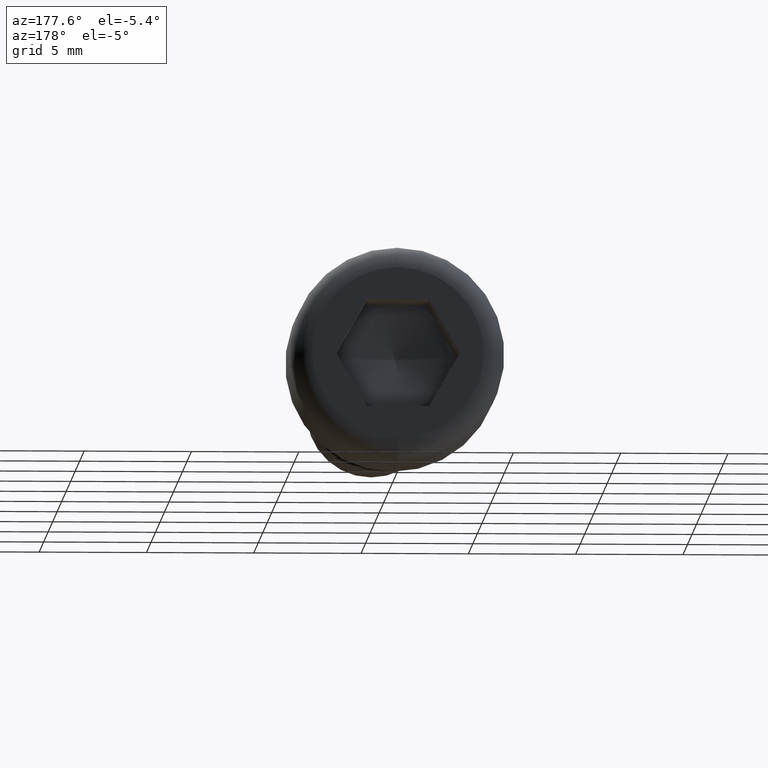
[diagram: clean part render]
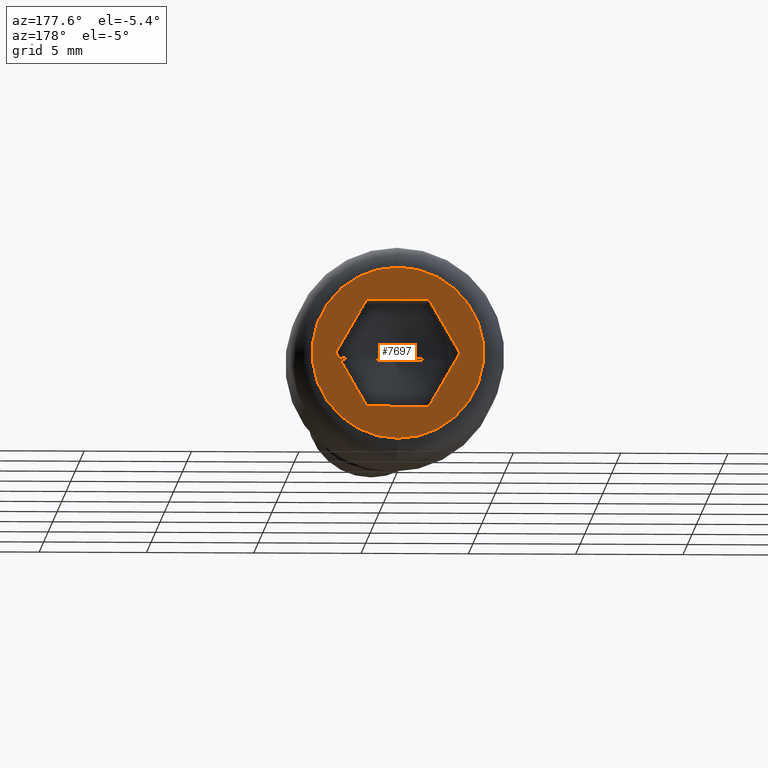
[diagram: same view with one face highlighted and labeled with its STEP entity id]
A machine part, auxiliary view. The second image highlights one B-rep face of the part: STEP entity #7697.
In plain terms, the highlighted planar face has unit normal (0, 1, 0).
Its self-contained STEP definition (entity closure, byte-faithful):
#267 = EDGE_CURVE ( 'NONE', #4363, #9775, #15121, .T. ) ;
#269 = EDGE_CURVE ( 'NONE', #15814, #13543, #11811, .T. ) ;
#746 = DIRECTION ( 'NONE',  ( 0.000000000000000000, 1.000000000000000000, 0.000000000000000000 ) ) ;
#815 = VECTOR ( 'NONE', #12309, 1000.000000000000114 ) ;
#2253 = DIRECTION ( 'NONE',  ( 0.000000000000000000, 1.000000000000000000, 0.000000000000000000 ) ) ;
#2877 = FACE_BOUND ( 'NONE', #4039, .T. ) ;
#2933 = CARTESIAN_POINT ( 'NONE',  ( 1.443375672974064328, 6.000000000000000000, -2.500000000000000444 ) ) ;
#3025 = CARTESIAN_POINT ( 'NONE',  ( -1.443375672974064106, 6.000000000000000000, 2.499999999999999556 ) ) ;
#3130 = CIRCLE ( 'NONE', #3630, 4.000000000000000000 ) ;
#3495 = CARTESIAN_POINT ( 'NONE',  ( 2.886751345948129543, 6.000000000000000000, -5.708153566467252710E-16 ) ) ;
#3630 = AXIS2_PLACEMENT_3D ( 'NONE', #17776, #746, #15013 ) ;
#4039 = EDGE_LOOP ( 'NONE', ( #12035, #6547, #12973, #4732, #11047, #10027 ) ) ;
#4363 = VERTEX_POINT ( 'NONE', #5431 ) ;
#4430 = VECTOR ( 'NONE', #11291, 1000.000000000000114 ) ;
#4732 = ORIENTED_EDGE ( 'NONE', *, *, #10669, .F. ) ;
#4952 = EDGE_CURVE ( 'NONE', #9775, #4363, #3130, .T. ) ;
#5080 = LINE ( 'NONE', #11040, #815 ) ;
#5431 = CARTESIAN_POINT ( 'NONE',  ( 5.510910596163088569E-16, 6.000000000000000000, -4.000000000000000000 ) ) ;
#5580 = EDGE_CURVE ( 'NONE', #13543, #16003, #13330, .T. ) ;
#6071 = DIRECTION ( 'NONE',  ( 0.5000000000000001110, 0.000000000000000000, 0.8660254037844385966 ) ) ;
#6230 = CARTESIAN_POINT ( 'NONE',  ( 0.000000000000000000, 6.000000000000000000, 0.000000000000000000 ) ) ;
#6431 = VERTEX_POINT ( 'NONE', #3495 ) ;
#6444 = DIRECTION ( 'NONE',  ( 0.000000000000000000, 0.000000000000000000, 1.000000000000000000 ) ) ;
#6547 = ORIENTED_EDGE ( 'NONE', *, *, #5580, .F. ) ;
#6662 = VERTEX_POINT ( 'NONE', #2933 ) ;
#7147 = EDGE_CURVE ( 'NONE', #16003, #8440, #18662, .T. ) ;
#7213 = CARTESIAN_POINT ( 'NONE',  ( -2.886751345948129099, 6.000000000000000000, -4.252953893243341464E-16 ) ) ;
#7513 = PLANE ( 'NONE',  #8386 ) ;
#7697 = ADVANCED_FACE ( 'NONE', ( #2877, #18166 ), #7513, .T. ) ;
#8386 = AXIS2_PLACEMENT_3D ( 'NONE', #6230, #16282, #17545 ) ;
#8440 = VERTEX_POINT ( 'NONE', #12382 ) ;
#9294 = DIRECTION ( 'NONE',  ( -0.5000000000000001110, 0.000000000000000000, 0.8660254037844387076 ) ) ;
#9775 = VERTEX_POINT ( 'NONE', #14616 ) ;
#10027 = ORIENTED_EDGE ( 'NONE', *, *, #12469, .F. ) ;
#10669 = EDGE_CURVE ( 'NONE', #6662, #15814, #11196, .T. ) ;
#10804 = CARTESIAN_POINT ( 'NONE',  ( -1.443375672974064772, 6.000000000000000000, -2.500000000000000000 ) ) ;
#11040 = CARTESIAN_POINT ( 'NONE',  ( 2.886751345948129543, 6.000000000000000000, -5.708153566467252710E-16 ) ) ;
#11047 = ORIENTED_EDGE ( 'NONE', *, *, #14508, .F. ) ;
#11196 = LINE ( 'NONE', #17334, #12558 ) ;
#11246 = AXIS2_PLACEMENT_3D ( 'NONE', #17932, #2253, #6444 ) ;
#11291 = DIRECTION ( 'NONE',  ( 0.5000000000000002220, 0.000000000000000000, -0.8660254037844384856 ) ) ;
#11422 = CARTESIAN_POINT ( 'NONE',  ( 1.443375672974064328, 6.000000000000000000, 2.499999999999999556 ) ) ;
#11717 = DIRECTION ( 'NONE',  ( -1.000000000000000000, 0.000000000000000000, 1.502314598737159278E-16 ) ) ;
#11811 = LINE ( 'NONE', #10804, #15806 ) ;
#11955 = DIRECTION ( 'NONE',  ( 1.000000000000000000, 0.000000000000000000, 0.000000000000000000 ) ) ;
#12035 = ORIENTED_EDGE ( 'NONE', *, *, #7147, .F. ) ;
#12309 = DIRECTION ( 'NONE',  ( -0.5000000000000002220, 0.000000000000000000, -0.8660254037844384856 ) ) ;
#12382 = CARTESIAN_POINT ( 'NONE',  ( 1.443375672974064772, 6.000000000000000000, 2.499999999999999556 ) ) ;
#12469 = EDGE_CURVE ( 'NONE', #8440, #6431, #15244, .T. ) ;
#12558 = VECTOR ( 'NONE', #11717, 1000.000000000000000 ) ;
#12973 = ORIENTED_EDGE ( 'NONE', *, *, #269, .F. ) ;
#13330 = LINE ( 'NONE', #7213, #14642 ) ;
#13543 = VERTEX_POINT ( 'NONE', #17795 ) ;
#14508 = EDGE_CURVE ( 'NONE', #6431, #6662, #5080, .T. ) ;
#14616 = CARTESIAN_POINT ( 'NONE',  ( 0.000000000000000000, 6.000000000000000000, 4.000000000000000000 ) ) ;
#14642 = VECTOR ( 'NONE', #6071, 1000.000000000000000 ) ;
#14685 = CARTESIAN_POINT ( 'NONE',  ( -1.443375672974064106, 6.000000000000000000, 2.499999999999999556 ) ) ;
#14834 = VECTOR ( 'NONE', #11955, 1000.000000000000000 ) ;
#15013 = DIRECTION ( 'NONE',  ( 0.000000000000000000, 0.000000000000000000, 1.000000000000000000 ) ) ;
#15121 = CIRCLE ( 'NONE', #11246, 4.000000000000000000 ) ;
#15211 = ORIENTED_EDGE ( 'NONE', *, *, #267, .T. ) ;
#15244 = LINE ( 'NONE', #11422, #4430 ) ;
#15806 = VECTOR ( 'NONE', #9294, 999.9999999999998863 ) ;
#15814 = VERTEX_POINT ( 'NONE', #18376 ) ;
#16003 = VERTEX_POINT ( 'NONE', #3025 ) ;
#16282 = DIRECTION ( 'NONE',  ( 0.000000000000000000, 1.000000000000000000, 0.000000000000000000 ) ) ;
#17056 = EDGE_LOOP ( 'NONE', ( #17152, #15211 ) ) ;
#17152 = ORIENTED_EDGE ( 'NONE', *, *, #4952, .T. ) ;
#17334 = CARTESIAN_POINT ( 'NONE',  ( 1.443375672974064328, 6.000000000000000000, -2.500000000000000444 ) ) ;
#17545 = DIRECTION ( 'NONE',  ( 0.000000000000000000, -0.000000000000000000, 1.000000000000000000 ) ) ;
#17776 = CARTESIAN_POINT ( 'NONE',  ( 0.000000000000000000, 6.000000000000000000, 0.000000000000000000 ) ) ;
#17795 = CARTESIAN_POINT ( 'NONE',  ( -2.886751345948129099, 6.000000000000000000, -4.252953893243341464E-16 ) ) ;
#17932 = CARTESIAN_POINT ( 'NONE',  ( 0.000000000000000000, 6.000000000000000000, 0.000000000000000000 ) ) ;
#18166 = FACE_OUTER_BOUND ( 'NONE', #17056, .T. ) ;
#18376 = CARTESIAN_POINT ( 'NONE',  ( -1.443375672974064772, 6.000000000000000000, -2.500000000000000000 ) ) ;
#18662 = LINE ( 'NONE', #14685, #14834 ) ;